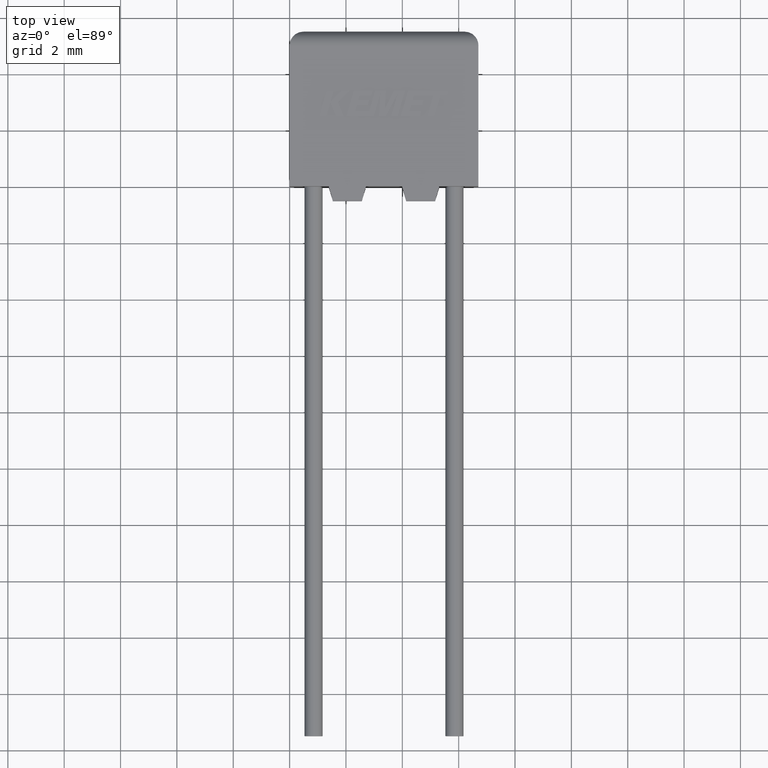
[diagram: clean part render]
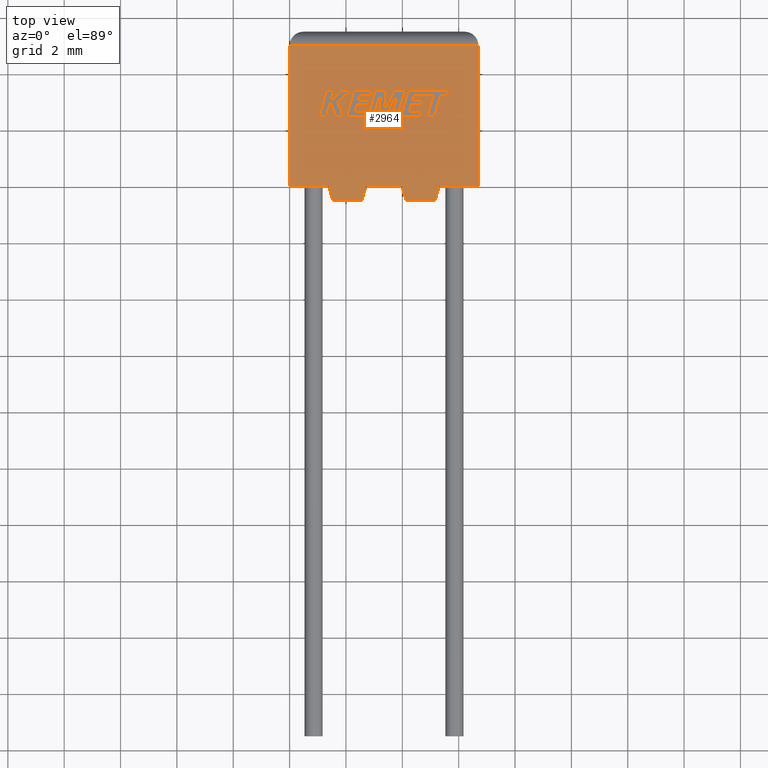
[diagram: same view with one face highlighted and labeled with its STEP entity id]
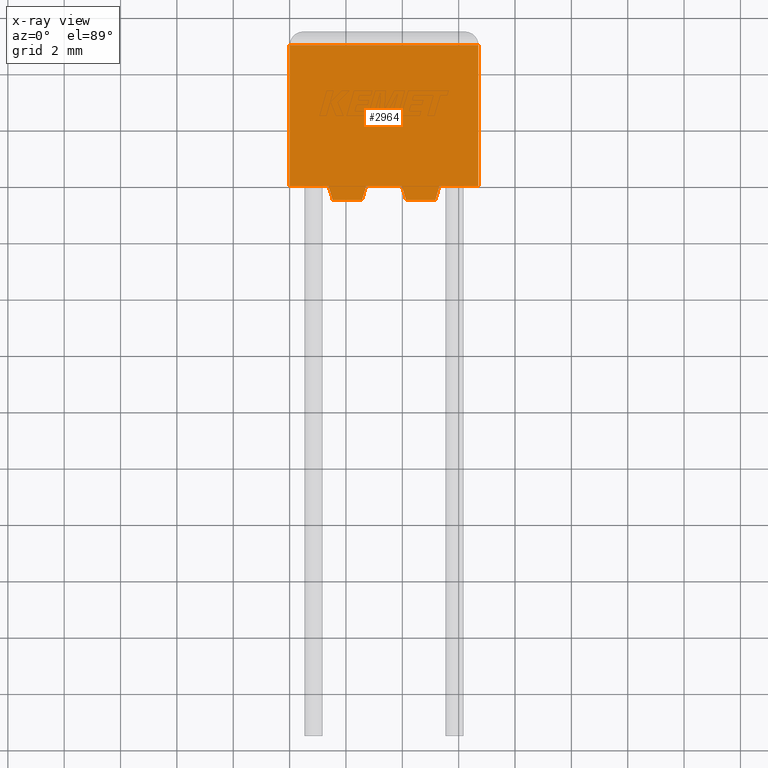
[diagram: x-ray of the same camera — body ghosted, the highlighted face saturated]
A machine part, top view. The second image highlights one B-rep face of the part: STEP entity #2964.
The next image is the same camera in x-ray: the body ghosted, the highlighted face saturated — about 0% of this face is hidden behind the body in this view.
In plain terms, the highlighted planar face has unit normal (0, 0, -1).
Its self-contained STEP definition (entity closure, byte-faithful):
#5 = EDGE_CURVE ( 'NONE', #831, #1526, #380, .T. ) ;
#22 = LINE ( 'NONE', #2567, #2615 ) ;
#61 = VECTOR ( 'NONE', #1890, 1000.000000000000000 ) ;
#141 = CARTESIAN_POINT ( 'NONE',  ( 4.138900000000000500, -0.4999999999999998900, 2.000000000000000000 ) ) ;
#224 = LINE ( 'NONE', #3019, #3042 ) ;
#245 = CARTESIAN_POINT ( 'NONE',  ( 0.0000000000000000000, 0.0000000000000000000, 2.000000000000000000 ) ) ;
#250 = CARTESIAN_POINT ( 'NONE',  ( 0.0000000000000000000, 4.999999999999999100, 2.000000000000000000 ) ) ;
#254 = DIRECTION ( 'NONE',  ( 0.0000000000000000000, 0.0000000000000000000, -1.000000000000000000 ) ) ;
#257 = VERTEX_POINT ( 'NONE', #1690 ) ;
#279 = CARTESIAN_POINT ( 'NONE',  ( 5.164000000000000600, -0.4999999999999998900, 2.000000000000000000 ) ) ;
#321 = ORIENTED_EDGE ( 'NONE', *, *, #1305, .T. ) ;
#380 = LINE ( 'NONE', #1279, #2849 ) ;
#390 = LINE ( 'NONE', #897, #61 ) ;
#393 = LINE ( 'NONE', #1435, #1931 ) ;
#465 = VECTOR ( 'NONE', #2488, 1000.000000000000200 ) ;
#479 = DIRECTION ( 'NONE',  ( -1.000000000000000000, 0.0000000000000000000, -0.0000000000000000000 ) ) ;
#529 = ORIENTED_EDGE ( 'NONE', *, *, #1270, .T. ) ;
#703 = VECTOR ( 'NONE', #3000, 1000.000000000000000 ) ;
#717 = FACE_OUTER_BOUND ( 'NONE', #996, .T. ) ;
#725 = CARTESIAN_POINT ( 'NONE',  ( 2.561100000000000200, -0.4999999999999998900, 2.000000000000000000 ) ) ;
#740 = CARTESIAN_POINT ( 'NONE',  ( 5.164000000000000600, -0.4999999999999998900, 2.000000000000000000 ) ) ;
#751 = VERTEX_POINT ( 'NONE', #279 ) ;
#799 = DIRECTION ( 'NONE',  ( 1.000000000000000000, 0.0000000000000000000, 0.0000000000000000000 ) ) ;
#831 = VERTEX_POINT ( 'NONE', #245 ) ;
#849 = CARTESIAN_POINT ( 'NONE',  ( 6.700000000000000200, 0.0000000000000000000, 2.000000000000000000 ) ) ;
#897 = CARTESIAN_POINT ( 'NONE',  ( 1.536000000000000000, -0.4999999999999998900, 2.000000000000000000 ) ) ;
#983 = AXIS2_PLACEMENT_3D ( 'NONE', #2235, #254, #479 ) ;
#996 = EDGE_LOOP ( 'NONE', ( #321, #2273, #1366, #2402, #2023, #1127, #2089, #2199, #1286, #2304, #3209, #529 ) ) ;
#1001 = LINE ( 'NONE', #2168, #3179 ) ;
#1106 = LINE ( 'NONE', #725, #465 ) ;
#1127 = ORIENTED_EDGE ( 'NONE', *, *, #2195, .T. ) ;
#1154 = CARTESIAN_POINT ( 'NONE',  ( 2.561100000000000200, -0.4999999999999998900, 2.000000000000000000 ) ) ;
#1175 = VERTEX_POINT ( 'NONE', #1201 ) ;
#1201 = CARTESIAN_POINT ( 'NONE',  ( 6.700000000000000200, 0.0000000000000000000, 2.000000000000000000 ) ) ;
#1214 = DIRECTION ( 'NONE',  ( 1.000000000000000000, 0.0000000000000000000, 0.0000000000000000000 ) ) ;
#1241 = VECTOR ( 'NONE', #799, 1000.000000000000000 ) ;
#1270 = EDGE_CURVE ( 'NONE', #2915, #1175, #1001, .T. ) ;
#1271 = LINE ( 'NONE', #1657, #3010 ) ;
#1279 = CARTESIAN_POINT ( 'NONE',  ( 0.0000000000000000000, 0.0000000000000000000, 2.000000000000000000 ) ) ;
#1286 = ORIENTED_EDGE ( 'NONE', *, *, #2505, .F. ) ;
#1305 = EDGE_CURVE ( 'NONE', #1175, #1390, #2164, .T. ) ;
#1366 = ORIENTED_EDGE ( 'NONE', *, *, #2150, .T. ) ;
#1390 = VERTEX_POINT ( 'NONE', #1837 ) ;
#1435 = CARTESIAN_POINT ( 'NONE',  ( 4.138900000000000500, -0.4999999999999998900, 2.000000000000000000 ) ) ;
#1480 = CARTESIAN_POINT ( 'NONE',  ( 0.0000000000000000000, 4.999999999999999100, 2.000000000000000000 ) ) ;
#1487 = VERTEX_POINT ( 'NONE', #250 ) ;
#1499 = DIRECTION ( 'NONE',  ( -1.000000000000000000, 0.0000000000000000000, 0.0000000000000000000 ) ) ;
#1515 = VECTOR ( 'NONE', #2375, 1000.000000000000000 ) ;
#1526 = VERTEX_POINT ( 'NONE', #2872 ) ;
#1624 = LINE ( 'NONE', #740, #703 ) ;
#1647 = CARTESIAN_POINT ( 'NONE',  ( 2.711100000000000100, 1.660069968584194800E-016, 2.000000000000000000 ) ) ;
#1657 = CARTESIAN_POINT ( 'NONE',  ( 1.386000000000000100, 8.486802318091159900E-017, 2.000000000000000000 ) ) ;
#1690 = CARTESIAN_POINT ( 'NONE',  ( 3.988900000000000100, 1.660069968584194800E-016, 2.000000000000000000 ) ) ;
#1724 = VERTEX_POINT ( 'NONE', #1861 ) ;
#1837 = CARTESIAN_POINT ( 'NONE',  ( 6.700000000000000200, 4.999999999999999100, 2.000000000000000000 ) ) ;
#1861 = CARTESIAN_POINT ( 'NONE',  ( 1.536000000000000000, -0.4999999999999998900, 2.000000000000000000 ) ) ;
#1874 = EDGE_CURVE ( 'NONE', #1526, #1724, #1271, .T. ) ;
#1890 = DIRECTION ( 'NONE',  ( 1.000000000000000000, 0.0000000000000000000, 0.0000000000000000000 ) ) ;
#1900 = VERTEX_POINT ( 'NONE', #1647 ) ;
#1931 = VECTOR ( 'NONE', #3185, 1000.000000000000200 ) ;
#1992 = DIRECTION ( 'NONE',  ( 1.000000000000000000, 0.0000000000000000000, 0.0000000000000000000 ) ) ;
#1993 = PLANE ( 'NONE',  #983 ) ;
#2023 = ORIENTED_EDGE ( 'NONE', *, *, #1874, .T. ) ;
#2089 = ORIENTED_EDGE ( 'NONE', *, *, #2525, .T. ) ;
#2113 = DIRECTION ( 'NONE',  ( -0.0000000000000000000, -1.000000000000000000, -0.0000000000000000000 ) ) ;
#2150 = EDGE_CURVE ( 'NONE', #1487, #831, #224, .T. ) ;
#2164 = LINE ( 'NONE', #849, #1515 ) ;
#2168 = CARTESIAN_POINT ( 'NONE',  ( 0.0000000000000000000, 0.0000000000000000000, 2.000000000000000000 ) ) ;
#2195 = EDGE_CURVE ( 'NONE', #1724, #3240, #390, .T. ) ;
#2199 = ORIENTED_EDGE ( 'NONE', *, *, #2384, .T. ) ;
#2235 = CARTESIAN_POINT ( 'NONE',  ( 0.0000000000000000000, 0.0000000000000000000, 2.000000000000000000 ) ) ;
#2273 = ORIENTED_EDGE ( 'NONE', *, *, #2565, .T. ) ;
#2280 = EDGE_CURVE ( 'NONE', #2915, #751, #22, .T. ) ;
#2304 = ORIENTED_EDGE ( 'NONE', *, *, #2725, .F. ) ;
#2345 = DIRECTION ( 'NONE',  ( -0.2873478855663453300, -0.9578262852211513200, 0.0000000000000000000 ) ) ;
#2375 = DIRECTION ( 'NONE',  ( 0.0000000000000000000, 1.000000000000000000, 0.0000000000000000000 ) ) ;
#2384 = EDGE_CURVE ( 'NONE', #1900, #257, #2473, .T. ) ;
#2402 = ORIENTED_EDGE ( 'NONE', *, *, #5, .T. ) ;
#2411 = DIRECTION ( 'NONE',  ( 0.2873478855663453300, -0.9578262852211513200, 0.0000000000000000000 ) ) ;
#2473 = LINE ( 'NONE', #2842, #1241 ) ;
#2488 = DIRECTION ( 'NONE',  ( 0.2873478855663452700, 0.9578262852211513200, 0.0000000000000000000 ) ) ;
#2505 = EDGE_CURVE ( 'NONE', #3247, #257, #393, .T. ) ;
#2525 = EDGE_CURVE ( 'NONE', #3240, #1900, #1106, .T. ) ;
#2535 = VECTOR ( 'NONE', #1499, 1000.000000000000000 ) ;
#2565 = EDGE_CURVE ( 'NONE', #1390, #1487, #2970, .T. ) ;
#2567 = CARTESIAN_POINT ( 'NONE',  ( 5.314000000000000100, 8.486802318091159900E-017, 2.000000000000000000 ) ) ;
#2615 = VECTOR ( 'NONE', #2345, 1000.000000000000200 ) ;
#2725 = EDGE_CURVE ( 'NONE', #751, #3247, #1624, .T. ) ;
#2793 = CARTESIAN_POINT ( 'NONE',  ( 5.314000000000000900, 1.084202172485504400E-016, 2.000000000000000000 ) ) ;
#2842 = CARTESIAN_POINT ( 'NONE',  ( 0.0000000000000000000, 0.0000000000000000000, 2.000000000000000000 ) ) ;
#2849 = VECTOR ( 'NONE', #1992, 1000.000000000000000 ) ;
#2872 = CARTESIAN_POINT ( 'NONE',  ( 1.386000000000000100, 0.0000000000000000000, 2.000000000000000000 ) ) ;
#2915 = VERTEX_POINT ( 'NONE', #2793 ) ;
#2964 = ADVANCED_FACE ( 'NONE', ( #717 ), #1993, .F. ) ;
#2970 = LINE ( 'NONE', #1480, #2535 ) ;
#3000 = DIRECTION ( 'NONE',  ( -1.000000000000000000, 0.0000000000000000000, 0.0000000000000000000 ) ) ;
#3010 = VECTOR ( 'NONE', #2411, 1000.000000000000200 ) ;
#3019 = CARTESIAN_POINT ( 'NONE',  ( 0.0000000000000000000, 0.0000000000000000000, 2.000000000000000000 ) ) ;
#3042 = VECTOR ( 'NONE', #2113, 1000.000000000000000 ) ;
#3179 = VECTOR ( 'NONE', #1214, 1000.000000000000000 ) ;
#3185 = DIRECTION ( 'NONE',  ( -0.2873478855663452700, 0.9578262852211513200, 0.0000000000000000000 ) ) ;
#3209 = ORIENTED_EDGE ( 'NONE', *, *, #2280, .F. ) ;
#3240 = VERTEX_POINT ( 'NONE', #1154 ) ;
#3247 = VERTEX_POINT ( 'NONE', #141 ) ;